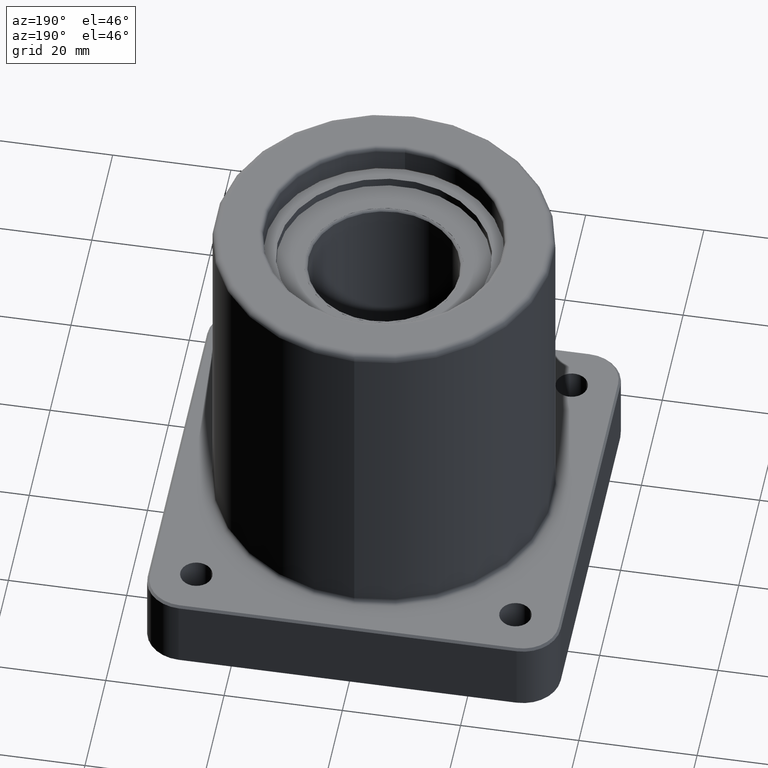
[diagram: clean part render]
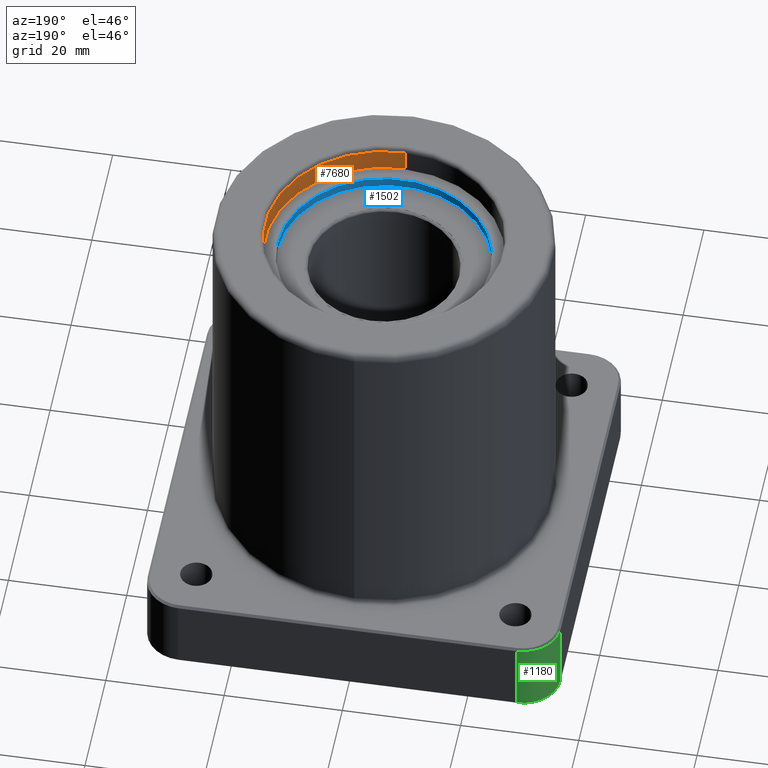
[diagram: same view with three faces highlighted in distinct colors, each labeled with its STEP entity id]
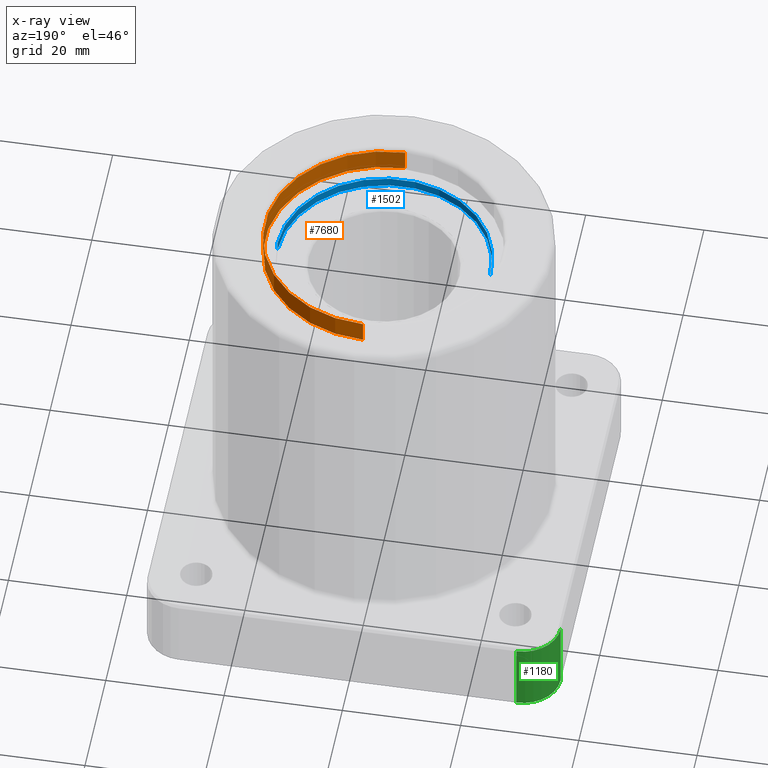
[diagram: x-ray of the same camera — body ghosted, the three highlighted faces saturated]
A machine part, auxiliary view with three faces highlighted in distinct colors.
The next image is the same camera in x-ray (body ghosted, the three faces saturated) — at least one of them is partly hidden behind the body in this view.
Their STEP definitions:

[orange] entity #7680 — the highlighted cylindrical surface (partial cylindrical patch) has radius 20.1549 mm, axis along (0, 0, -1).
#300 = LINE ( 'NONE', #7821, #7060 ) ;
#474 = ORIENTED_EDGE ( 'NONE', *, *, #6328, .T. ) ;
#485 = VERTEX_POINT ( 'NONE', #7256 ) ;
#514 = ORIENTED_EDGE ( 'NONE', *, *, #6831, .T. ) ;
#703 = DIRECTION ( 'NONE',  ( 0.000000000000000000, 1.596016354623717109E-16, -1.000000000000000000 ) ) ;
#876 = CARTESIAN_POINT ( 'NONE',  ( 0.000000000000000000, 0.7934999999999996501, -0.02999999999999999195 ) ) ;
#911 = DIRECTION ( 'NONE',  ( -0.000000000000000000, 1.444403239512299634E-16, -1.000000000000000000 ) ) ;
#993 = EDGE_CURVE ( 'NONE', #1241, #5692, #7247, .T. ) ;
#1026 = AXIS2_PLACEMENT_3D ( 'NONE', #1915, #6318, #5002 ) ;
#1241 = VERTEX_POINT ( 'NONE', #3680 ) ;
#1518 = DIRECTION ( 'NONE',  ( -0.000000000000000000, 1.444403239512299634E-16, -1.000000000000000000 ) ) ;
#1915 = CARTESIAN_POINT ( 'NONE',  ( 0.000000000000000000, 3.889674409583682293E-18, -0.03000000000000010644 ) ) ;
#2244 = EDGE_LOOP ( 'NONE', ( #2288, #6854, #514, #474 ) ) ;
#2288 = ORIENTED_EDGE ( 'NONE', *, *, #7431, .F. ) ;
#2305 = FACE_OUTER_BOUND ( 'NONE', #2244, .T. ) ;
#2380 = VERTEX_POINT ( 'NONE', #4381 ) ;
#2508 = VECTOR ( 'NONE', #1518, 39.37007874015748143 ) ;
#3193 = DIRECTION ( 'NONE',  ( 0.000000000000000000, 1.000000000000000000, 0.000000000000000000 ) ) ;
#3334 = AXIS2_PLACEMENT_3D ( 'NONE', #4797, #4301, #6839 ) ;
#3680 = CARTESIAN_POINT ( 'NONE',  ( 9.717572351234242822E-17, -0.7934999999999999831, 2.777000000000000579 ) ) ;
#4244 = CARTESIAN_POINT ( 'NONE',  ( 0.000000000000000000, 0.7934999999999992060, 2.777000000000000579 ) ) ;
#4301 = DIRECTION ( 'NONE',  ( 0.000000000000000000, -1.444403239512299634E-16, 1.000000000000000000 ) ) ;
#4381 = CARTESIAN_POINT ( 'NONE',  ( 9.717572351234242822E-17, -0.7934999999999999831, 2.629500000000000615 ) ) ;
#4797 = CARTESIAN_POINT ( 'NONE',  ( 0.000000000000000000, -4.015543149215188409E-16, 2.777000000000000579 ) ) ;
#4838 = CYLINDRICAL_SURFACE ( 'NONE', #1026, 0.7934999999999996501 ) ;
#5002 = DIRECTION ( 'NONE',  ( 0.000000000000000000, 1.000000000000000000, 1.452423909674998703E-16 ) ) ;
#5686 = LINE ( 'NONE', #876, #2508 ) ;
#5692 = VERTEX_POINT ( 'NONE', #4244 ) ;
#5837 = CIRCLE ( 'NONE', #6952, 0.7934999999999996501 ) ;
#6318 = DIRECTION ( 'NONE',  ( -0.000000000000000000, 1.444403239512299634E-16, -1.000000000000000000 ) ) ;
#6328 = EDGE_CURVE ( 'NONE', #485, #2380, #5837, .T. ) ;
#6831 = EDGE_CURVE ( 'NONE', #5692, #485, #5686, .T. ) ;
#6839 = DIRECTION ( 'NONE',  ( 0.000000000000000000, -1.000000000000000000, 0.000000000000000000 ) ) ;
#6854 = ORIENTED_EDGE ( 'NONE', *, *, #993, .T. ) ;
#6952 = AXIS2_PLACEMENT_3D ( 'NONE', #7055, #703, #3193 ) ;
#7055 = CARTESIAN_POINT ( 'NONE',  ( 0.000000000000000000, -3.802493671387124847E-16, 2.629500000000000615 ) ) ;
#7060 = VECTOR ( 'NONE', #911, 39.37007874015748143 ) ;
#7247 = CIRCLE ( 'NONE', #3334, 0.7934999999999996501 ) ;
#7256 = CARTESIAN_POINT ( 'NONE',  ( 0.000000000000000000, 0.7934999999999992060, 2.629500000000000615 ) ) ;
#7431 = EDGE_CURVE ( 'NONE', #1241, #2380, #300, .T. ) ;
#7680 = ADVANCED_FACE ( 'NONE', ( #2305 ), #4838, .F. ) ;
#7821 = CARTESIAN_POINT ( 'NONE',  ( 9.717572351234242822E-17, -0.7934999999999996501, -0.03000000000000022093 ) ) ;

[blue] entity #1502 — the highlighted cylindrical surface (partial cylindrical patch) has radius 18.0213 mm, axis along (0, 0, 1).
#159 = CIRCLE ( 'NONE', #5583, 0.7095000000000000195 ) ;
#174 = CARTESIAN_POINT ( 'NONE',  ( 7.642399441051658817E-31, 3.081847071070448267E-15, 2.545000000000007923 ) ) ;
#217 = VECTOR ( 'NONE', #1157, 39.37007874015748143 ) ;
#254 = EDGE_CURVE ( 'NONE', #5669, #3448, #159, .T. ) ;
#535 = ORIENTED_EDGE ( 'NONE', *, *, #254, .F. ) ;
#579 = CARTESIAN_POINT ( 'NONE',  ( -0.7095000000000000195, 3.168735761469952630E-15, 2.545000000000007923 ) ) ;
#778 = DIRECTION ( 'NONE',  ( 1.000000000000000000, 0.000000000000000000, 0.000000000000000000 ) ) ;
#908 = DIRECTION ( 'NONE',  ( 0.000000000000000000, 0.000000000000000000, -1.000000000000000000 ) ) ;
#1128 = DIRECTION ( 'NONE',  ( 0.000000000000000000, -0.000000000000000000, 1.000000000000000000 ) ) ;
#1142 = VERTEX_POINT ( 'NONE', #1422 ) ;
#1157 = DIRECTION ( 'NONE',  ( 0.000000000000000000, -0.000000000000000000, 1.000000000000000000 ) ) ;
#1206 = CARTESIAN_POINT ( 'NONE',  ( 0.7095000000000000195, 3.081847071070448267E-15, 2.607000000000008200 ) ) ;
#1230 = CARTESIAN_POINT ( 'NONE',  ( 7.642399441051658817E-31, 3.081847071070448267E-15, 2.545000000000007923 ) ) ;
#1422 = CARTESIAN_POINT ( 'NONE',  ( 0.7095000000000000195, 3.081847071070448267E-15, 2.545000000000007923 ) ) ;
#1502 = ADVANCED_FACE ( 'NONE', ( #4434 ), #6410, .F. ) ;
#1522 = CIRCLE ( 'NONE', #6187, 0.7095000000000000195 ) ;
#1760 = EDGE_LOOP ( 'NONE', ( #4403, #2368, #535, #2818 ) ) ;
#2090 = DIRECTION ( 'NONE',  ( -1.000000000000000000, 0.000000000000000000, 0.000000000000000000 ) ) ;
#2368 = ORIENTED_EDGE ( 'NONE', *, *, #4534, .T. ) ;
#2818 = ORIENTED_EDGE ( 'NONE', *, *, #5690, .F. ) ;
#3412 = DIRECTION ( 'NONE',  ( -1.000000000000000000, 0.000000000000000000, 0.000000000000000000 ) ) ;
#3448 = VERTEX_POINT ( 'NONE', #3614 ) ;
#3614 = CARTESIAN_POINT ( 'NONE',  ( -0.7095000000000000195, 3.168735761469952630E-15, 2.607000000000008200 ) ) ;
#4403 = ORIENTED_EDGE ( 'NONE', *, *, #6002, .T. ) ;
#4434 = FACE_OUTER_BOUND ( 'NONE', #1760, .T. ) ;
#4534 = EDGE_CURVE ( 'NONE', #5965, #3448, #7562, .T. ) ;
#4590 = DIRECTION ( 'NONE',  ( 0.000000000000000000, 0.000000000000000000, -1.000000000000000000 ) ) ;
#4822 = VECTOR ( 'NONE', #1128, 39.37007874015748143 ) ;
#5583 = AXIS2_PLACEMENT_3D ( 'NONE', #6621, #908, #3412 ) ;
#5616 = LINE ( 'NONE', #6345, #217 ) ;
#5669 = VERTEX_POINT ( 'NONE', #1206 ) ;
#5690 = EDGE_CURVE ( 'NONE', #1142, #5669, #5616, .T. ) ;
#5965 = VERTEX_POINT ( 'NONE', #7774 ) ;
#6002 = EDGE_CURVE ( 'NONE', #1142, #5965, #1522, .T. ) ;
#6187 = AXIS2_PLACEMENT_3D ( 'NONE', #174, #4590, #2090 ) ;
#6218 = AXIS2_PLACEMENT_3D ( 'NONE', #1230, #7026, #778 ) ;
#6345 = CARTESIAN_POINT ( 'NONE',  ( 0.7095000000000000195, 3.081847071070448267E-15, 2.545000000000007923 ) ) ;
#6410 = CYLINDRICAL_SURFACE ( 'NONE', #6218, 0.7095000000000000195 ) ;
#6621 = CARTESIAN_POINT ( 'NONE',  ( 7.642399441051658817E-31, 3.081847071070448267E-15, 2.607000000000008200 ) ) ;
#7026 = DIRECTION ( 'NONE',  ( 0.000000000000000000, -0.000000000000000000, 1.000000000000000000 ) ) ;
#7562 = LINE ( 'NONE', #579, #4822 ) ;
#7774 = CARTESIAN_POINT ( 'NONE',  ( -0.7095000000000000195, 3.168735761469952630E-15, 2.545000000000007923 ) ) ;

[green] entity #1180 — the highlighted cylindrical surface (partial cylindrical patch) has radius 6.35 mm, axis along (0, 0, 1).
#138 = DIRECTION ( 'NONE',  ( -0.000000000000000000, -0.000000000000000000, 1.000000000000000000 ) ) ;
#628 = CARTESIAN_POINT ( 'NONE',  ( -1.124999999999999778, 1.125000000000000000, -1.707404996040164512E-17 ) ) ;
#947 = DIRECTION ( 'NONE',  ( 0.000000000000000000, 0.000000000000000000, -1.000000000000000000 ) ) ;
#978 = DIRECTION ( 'NONE',  ( 1.000000000000000000, 0.000000000000000000, 0.000000000000000000 ) ) ;
#1151 = VERTEX_POINT ( 'NONE', #2671 ) ;
#1180 = ADVANCED_FACE ( 'NONE', ( #8191 ), #8058, .T. ) ;
#1385 = DIRECTION ( 'NONE',  ( -0.000000000000000000, -0.000000000000000000, 1.000000000000000000 ) ) ;
#2099 = EDGE_CURVE ( 'NONE', #7412, #5571, #5813, .T. ) ;
#2135 = ORIENTED_EDGE ( 'NONE', *, *, #2099, .T. ) ;
#2315 = CARTESIAN_POINT ( 'NONE',  ( -1.124999999999999778, 1.125000000000000000, -1.707404996040164512E-17 ) ) ;
#2327 = CARTESIAN_POINT ( 'NONE',  ( -1.374999999999999778, 1.125000000000000000, -1.707404996040164512E-17 ) ) ;
#2423 = CIRCLE ( 'NONE', #6712, 0.2499999999999998057 ) ;
#2583 = VECTOR ( 'NONE', #1385, 39.37007874015748143 ) ;
#2671 = CARTESIAN_POINT ( 'NONE',  ( -1.124999999999999778, 1.375000000000000000, -1.707404996040164512E-17 ) ) ;
#3114 = DIRECTION ( 'NONE',  ( 0.000000000000000000, 0.000000000000000000, 1.000000000000000000 ) ) ;
#3242 = CARTESIAN_POINT ( 'NONE',  ( -1.124999999999999778, 1.375000000000000000, -1.707404996040164512E-17 ) ) ;
#3294 = EDGE_CURVE ( 'NONE', #1151, #7412, #2423, .T. ) ;
#3462 = CARTESIAN_POINT ( 'NONE',  ( -1.124999999999999778, 1.375000000000000000, 0.4849999999999996536 ) ) ;
#3503 = VECTOR ( 'NONE', #138, 39.37007874015748143 ) ;
#3869 = ORIENTED_EDGE ( 'NONE', *, *, #6992, .T. ) ;
#4067 = CARTESIAN_POINT ( 'NONE',  ( -1.374999999999999778, 1.125000000000000000, 0.4849999999999996536 ) ) ;
#4222 = VERTEX_POINT ( 'NONE', #3462 ) ;
#4265 = ORIENTED_EDGE ( 'NONE', *, *, #5119, .F. ) ;
#4787 = EDGE_LOOP ( 'NONE', ( #2135, #3869, #4265, #5599 ) ) ;
#4847 = DIRECTION ( 'NONE',  ( 1.000000000000000000, 0.000000000000000000, 0.000000000000000000 ) ) ;
#5119 = EDGE_CURVE ( 'NONE', #1151, #4222, #7139, .T. ) ;
#5571 = VERTEX_POINT ( 'NONE', #4067 ) ;
#5599 = ORIENTED_EDGE ( 'NONE', *, *, #3294, .T. ) ;
#5813 = LINE ( 'NONE', #6377, #3503 ) ;
#6233 = DIRECTION ( 'NONE',  ( -1.000000000000000000, 0.000000000000000000, 0.000000000000000000 ) ) ;
#6377 = CARTESIAN_POINT ( 'NONE',  ( -1.374999999999999778, 1.125000000000000000, -1.707404996040164512E-17 ) ) ;
#6712 = AXIS2_PLACEMENT_3D ( 'NONE', #628, #3114, #6233 ) ;
#6806 = DIRECTION ( 'NONE',  ( -0.000000000000000000, -0.000000000000000000, 1.000000000000000000 ) ) ;
#6992 = EDGE_CURVE ( 'NONE', #5571, #4222, #7748, .T. ) ;
#7139 = LINE ( 'NONE', #3242, #2583 ) ;
#7343 = AXIS2_PLACEMENT_3D ( 'NONE', #7973, #947, #978 ) ;
#7412 = VERTEX_POINT ( 'NONE', #2327 ) ;
#7455 = AXIS2_PLACEMENT_3D ( 'NONE', #2315, #6806, #4847 ) ;
#7748 = CIRCLE ( 'NONE', #7343, 0.2499999999999998057 ) ;
#7973 = CARTESIAN_POINT ( 'NONE',  ( -1.124999999999999778, 1.125000000000000000, 0.4849999999999995981 ) ) ;
#8058 = CYLINDRICAL_SURFACE ( 'NONE', #7455, 0.2499999999999998057 ) ;
#8191 = FACE_OUTER_BOUND ( 'NONE', #4787, .T. ) ;